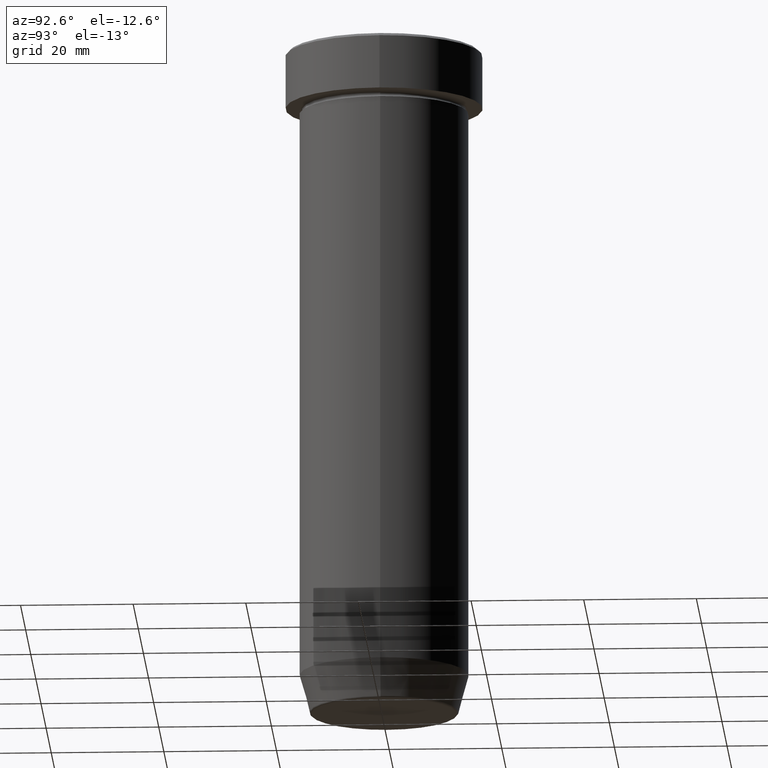
[diagram: clean part render]
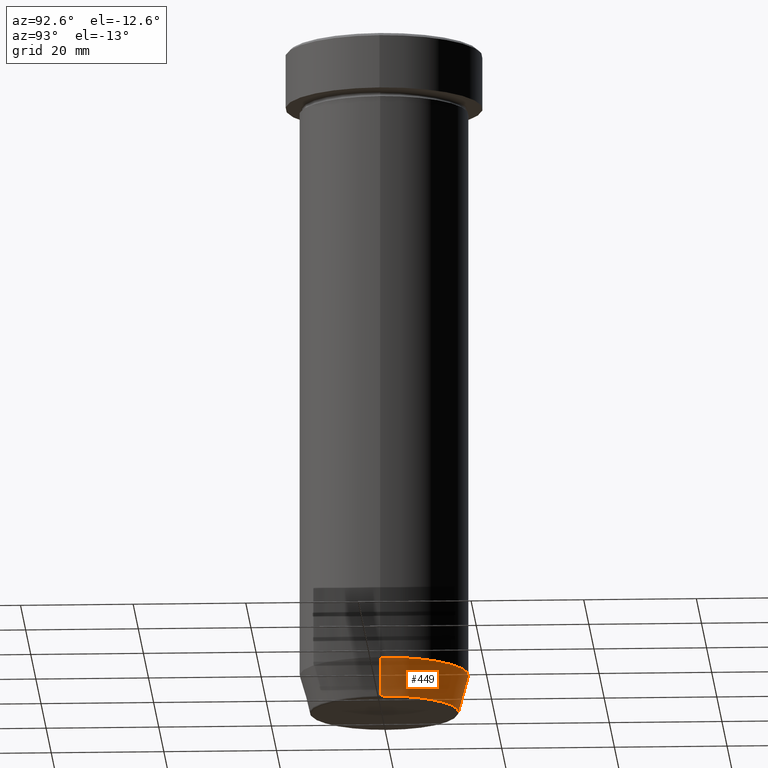
[diagram: same view with one face highlighted and labeled with its STEP entity id]
A machine part, auxiliary view. The second image highlights one B-rep face of the part: STEP entity #449.
In plain terms, the highlighted conical surface has half-angle 15 deg.
Its self-contained STEP definition (entity closure, byte-faithful):
#12 = CARTESIAN_POINT ( 'NONE',  ( 0.000000000000000000, 0.000000000000000000, -112.9999999999999858 ) ) ;
#21 = LINE ( 'NONE', #348, #233 ) ;
#23 = EDGE_LOOP ( 'NONE', ( #585, #475, #196, #404 ) ) ;
#43 = CARTESIAN_POINT ( 'NONE',  ( -13.22365507213719660, 1.728200442216588780E-15, -119.6294095225512564 ) ) ;
#77 = DIRECTION ( 'NONE',  ( 1.000000000000000000, 0.000000000000000000, 0.000000000000000000 ) ) ;
#80 = VERTEX_POINT ( 'NONE', #401 ) ;
#100 = AXIS2_PLACEMENT_3D ( 'NONE', #12, #380, #484 ) ;
#110 = DIRECTION ( 'NONE',  ( -0.2588190451025210725, 3.169619151431769255E-17, 0.9659258262890680902 ) ) ;
#112 = VERTEX_POINT ( 'NONE', #43 ) ;
#115 = CARTESIAN_POINT ( 'NONE',  ( 15.00000000000000000, 0.000000000000000000, -112.9999999999999858 ) ) ;
#146 = CONICAL_SURFACE ( 'NONE', #185, 13.12435565298213547, 0.2617993877991497964 ) ;
#185 = AXIS2_PLACEMENT_3D ( 'NONE', #297, #209, #77 ) ;
#188 = VECTOR ( 'NONE', #110, 1000.000000000000114 ) ;
#196 = ORIENTED_EDGE ( 'NONE', *, *, #549, .F. ) ;
#202 = CARTESIAN_POINT ( 'NONE',  ( 0.000000000000000000, 0.000000000000000000, -119.6294095225512564 ) ) ;
#209 = DIRECTION ( 'NONE',  ( -0.000000000000000000, -0.000000000000000000, 1.000000000000000000 ) ) ;
#213 = CARTESIAN_POINT ( 'NONE',  ( -13.12435565298213547, 1.607270014129604385E-15, -120.0000000000000000 ) ) ;
#214 = VERTEX_POINT ( 'NONE', #322 ) ;
#233 = VECTOR ( 'NONE', #537, 1000.000000000000114 ) ;
#268 = CIRCLE ( 'NONE', #344, 13.22365507213719482 ) ;
#297 = CARTESIAN_POINT ( 'NONE',  ( 0.000000000000000000, 0.000000000000000000, -120.0000000000000000 ) ) ;
#322 = CARTESIAN_POINT ( 'NONE',  ( 13.22365507213719660, 0.000000000000000000, -119.6294095225512564 ) ) ;
#340 = FACE_OUTER_BOUND ( 'NONE', #23, .T. ) ;
#344 = AXIS2_PLACEMENT_3D ( 'NONE', #202, #437, #395 ) ;
#348 = CARTESIAN_POINT ( 'NONE',  ( 13.12435565298213547, 0.000000000000000000, -120.0000000000000000 ) ) ;
#380 = DIRECTION ( 'NONE',  ( -0.000000000000000000, -0.000000000000000000, 1.000000000000000000 ) ) ;
#395 = DIRECTION ( 'NONE',  ( -1.000000000000000000, 0.000000000000000000, 0.000000000000000000 ) ) ;
#401 = CARTESIAN_POINT ( 'NONE',  ( -15.00000000000000000, 1.836970198721029589E-15, -112.9999999999999858 ) ) ;
#404 = ORIENTED_EDGE ( 'NONE', *, *, #497, .F. ) ;
#431 = VERTEX_POINT ( 'NONE', #115 ) ;
#437 = DIRECTION ( 'NONE',  ( -0.000000000000000000, -0.000000000000000000, 1.000000000000000000 ) ) ;
#449 = ADVANCED_FACE ( 'NONE', ( #340 ), #146, .T. ) ;
#465 = EDGE_CURVE ( 'NONE', #112, #80, #528, .T. ) ;
#475 = ORIENTED_EDGE ( 'NONE', *, *, #465, .T. ) ;
#484 = DIRECTION ( 'NONE',  ( 1.000000000000000000, 0.000000000000000000, 0.000000000000000000 ) ) ;
#485 = EDGE_CURVE ( 'NONE', #214, #112, #268, .T. ) ;
#497 = EDGE_CURVE ( 'NONE', #214, #431, #21, .T. ) ;
#528 = LINE ( 'NONE', #213, #188 ) ;
#537 = DIRECTION ( 'NONE',  ( 0.2588190451025210725, 0.000000000000000000, 0.9659258262890680902 ) ) ;
#549 = EDGE_CURVE ( 'NONE', #431, #80, #563, .T. ) ;
#563 = CIRCLE ( 'NONE', #100, 15.00000000000000000 ) ;
#585 = ORIENTED_EDGE ( 'NONE', *, *, #485, .T. ) ;